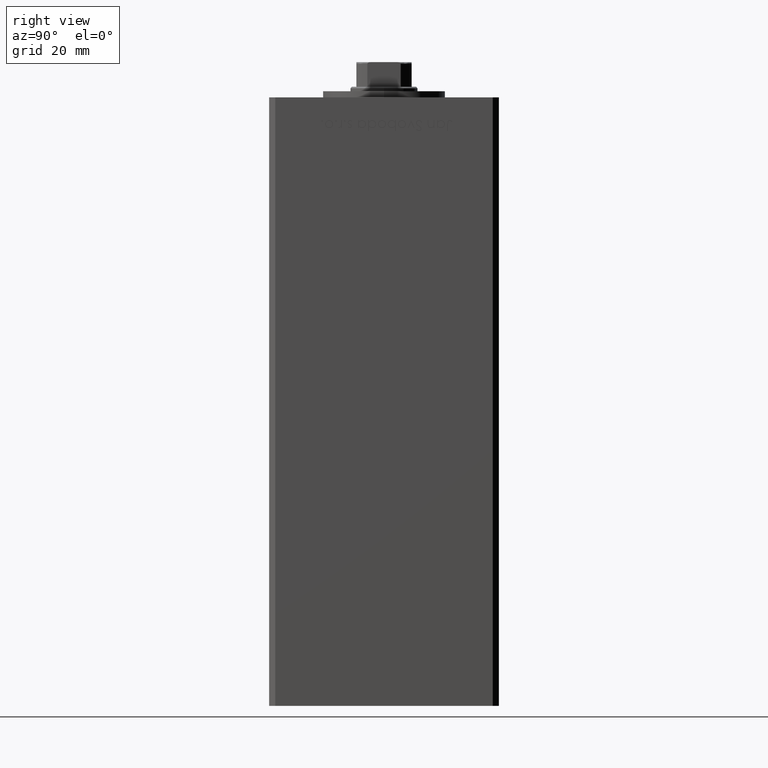
[diagram: clean part render]
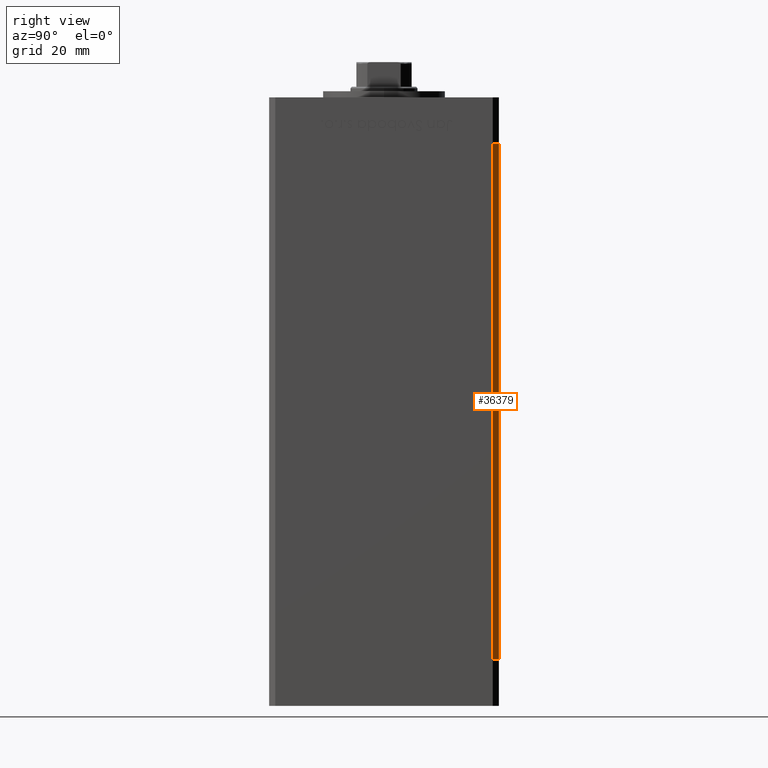
[diagram: same view with one face highlighted and labeled with its STEP entity id]
A machine part, right view. The second image highlights one B-rep face of the part: STEP entity #36379.
In plain terms, the highlighted planar face has unit normal (0.7071, 0.7071, 0).
Its self-contained STEP definition (entity closure, byte-faithful):
#122 = VECTOR ( 'NONE', #5764, 1000.000000000000000 ) ;
#767 = VERTEX_POINT ( 'NONE', #10537 ) ;
#840 = EDGE_CURVE ( 'NONE', #24970, #28647, #2628, .T. ) ;
#2628 = LINE ( 'NONE', #26584, #37729 ) ;
#2924 = EDGE_LOOP ( 'NONE', ( #4706, #14852, #49932, #47590 ) ) ;
#4706 = ORIENTED_EDGE ( 'NONE', *, *, #12325, .F. ) ;
#5764 = DIRECTION ( 'NONE',  ( -0.000000000000000000, -0.000000000000000000, -1.000000000000000000 ) ) ;
#5834 = VECTOR ( 'NONE', #24632, 1000.000000000000000 ) ;
#7080 = CARTESIAN_POINT ( 'NONE',  ( 40.50000000000000000, 37.50000000000000711, 168.5000000000000000 ) ) ;
#7995 = EDGE_CURVE ( 'NONE', #24970, #32266, #17496, .T. ) ;
#8574 = CARTESIAN_POINT ( 'NONE',  ( 40.50000000000000000, 37.50000000000000711, 168.5000000000000000 ) ) ;
#10537 = CARTESIAN_POINT ( 'NONE',  ( 42.50000000000000711, 35.50000000000001421, 0.000000000000000000 ) ) ;
#12325 = EDGE_CURVE ( 'NONE', #32266, #767, #47104, .T. ) ;
#12699 = VECTOR ( 'NONE', #51862, 1000.000000000000114 ) ;
#14255 = CARTESIAN_POINT ( 'NONE',  ( 40.50000000000000000, 37.50000000000000711, 168.5000000000000000 ) ) ;
#14772 = AXIS2_PLACEMENT_3D ( 'NONE', #7080, #18652, #42901 ) ;
#14852 = ORIENTED_EDGE ( 'NONE', *, *, #7995, .F. ) ;
#15039 = EDGE_CURVE ( 'NONE', #28647, #767, #22075, .T. ) ;
#15755 = FACE_OUTER_BOUND ( 'NONE', #2924, .T. ) ;
#17496 = LINE ( 'NONE', #8574, #5834 ) ;
#18652 = DIRECTION ( 'NONE',  ( 0.7071067811865451302, 0.7071067811865500152, -0.000000000000000000 ) ) ;
#22075 = LINE ( 'NONE', #34450, #122 ) ;
#24632 = DIRECTION ( 'NONE',  ( -0.000000000000000000, -0.000000000000000000, -1.000000000000000000 ) ) ;
#24970 = VERTEX_POINT ( 'NONE', #14255 ) ;
#26300 = CARTESIAN_POINT ( 'NONE',  ( 40.50000000000000000, 37.50000000000000711, 0.000000000000000000 ) ) ;
#26584 = CARTESIAN_POINT ( 'NONE',  ( 40.50000000000000000, 37.50000000000000711, 168.5000000000000000 ) ) ;
#27112 = DIRECTION ( 'NONE',  ( 0.7071067811865500152, -0.7071067811865451302, 0.000000000000000000 ) ) ;
#28434 = CARTESIAN_POINT ( 'NONE',  ( 42.50000000000000711, 35.50000000000001421, 168.5000000000000000 ) ) ;
#28647 = VERTEX_POINT ( 'NONE', #28434 ) ;
#32266 = VERTEX_POINT ( 'NONE', #26300 ) ;
#34450 = CARTESIAN_POINT ( 'NONE',  ( 42.50000000000000711, 35.50000000000001421, 168.5000000000000000 ) ) ;
#36379 = ADVANCED_FACE ( 'NONE', ( #15755 ), #38678, .T. ) ;
#37729 = VECTOR ( 'NONE', #27112, 1000.000000000000114 ) ;
#38678 = PLANE ( 'NONE',  #14772 ) ;
#42901 = DIRECTION ( 'NONE',  ( -0.7071067811865500152, 0.7071067811865451302, 0.000000000000000000 ) ) ;
#47104 = LINE ( 'NONE', #51346, #12699 ) ;
#47590 = ORIENTED_EDGE ( 'NONE', *, *, #15039, .T. ) ;
#49932 = ORIENTED_EDGE ( 'NONE', *, *, #840, .T. ) ;
#51346 = CARTESIAN_POINT ( 'NONE',  ( 40.50000000000000000, 37.50000000000000711, 0.000000000000000000 ) ) ;
#51862 = DIRECTION ( 'NONE',  ( 0.7071067811865500152, -0.7071067811865451302, 0.000000000000000000 ) ) ;